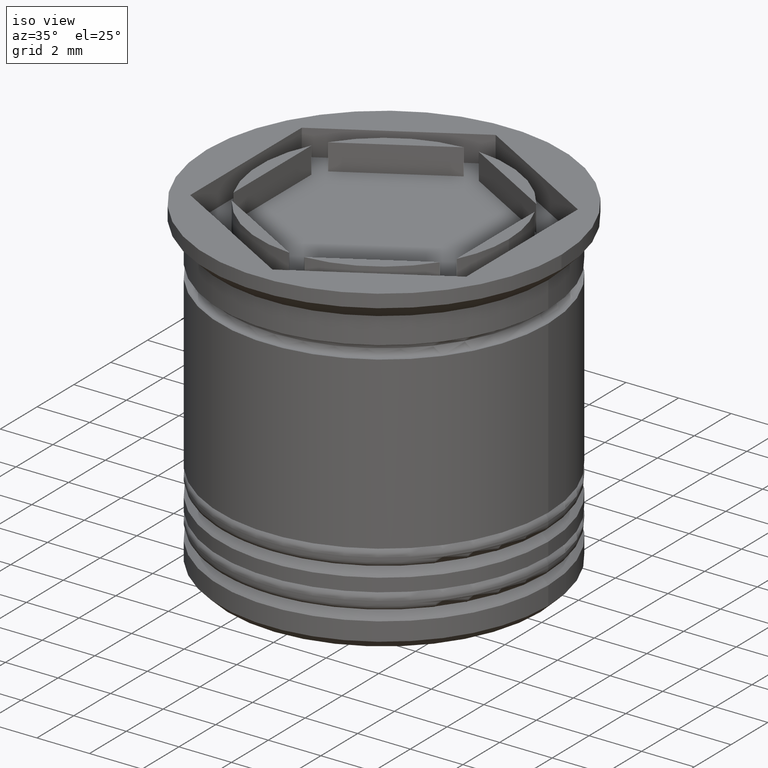
[diagram: clean part render]
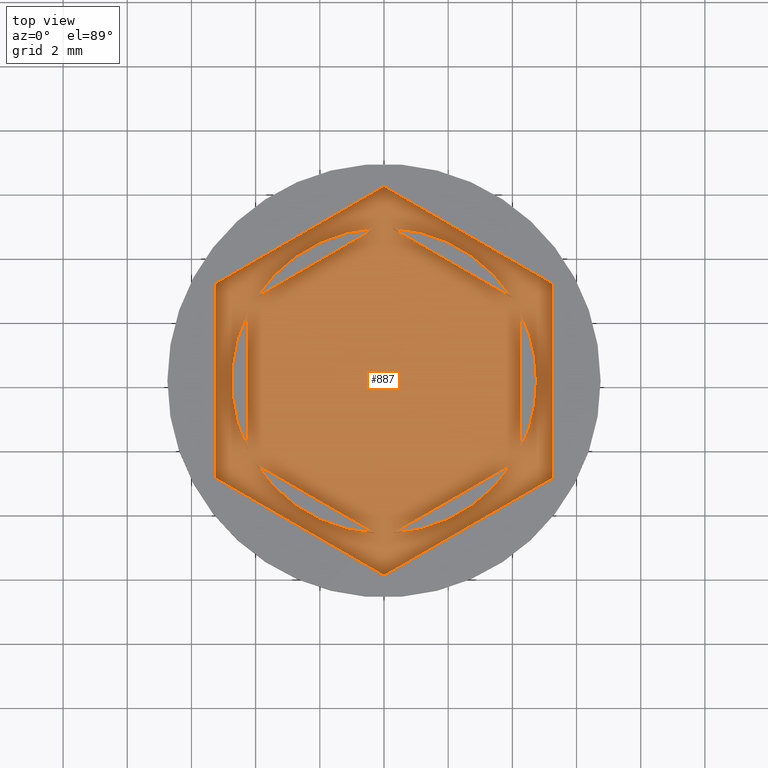
[diagram: tour spotlight — one face highlighted and labeled with its STEP entity id]
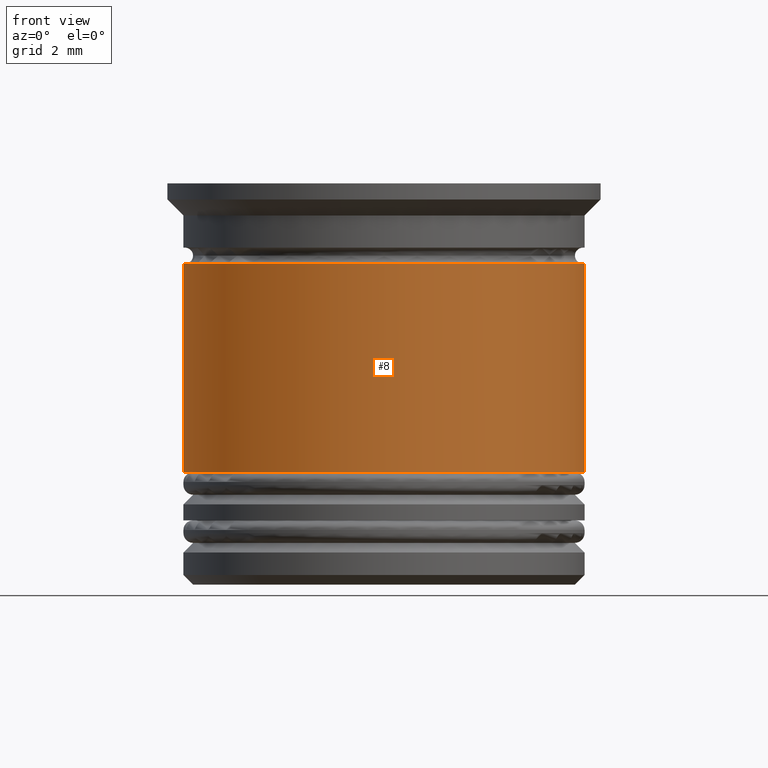
[diagram: tour spotlight — one face highlighted and labeled with its STEP entity id]
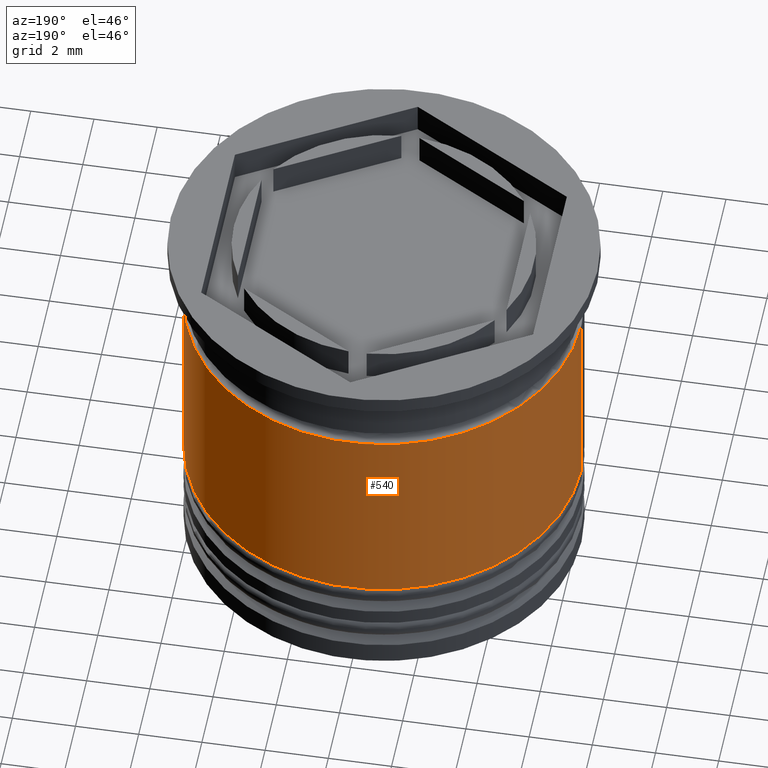
[diagram: tour spotlight — one face highlighted and labeled with its STEP entity id]
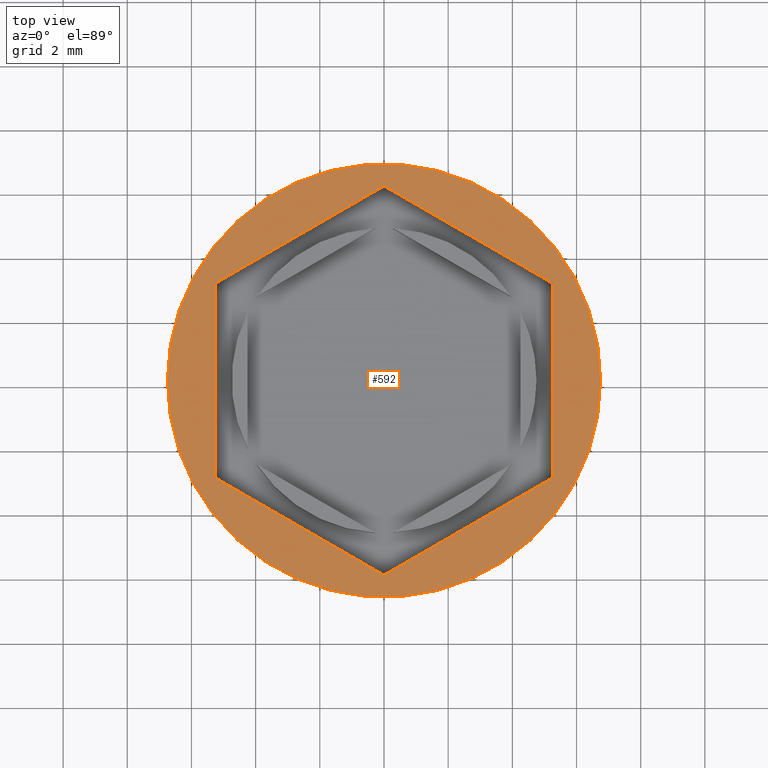
[diagram: tour spotlight — one face highlighted and labeled with its STEP entity id]
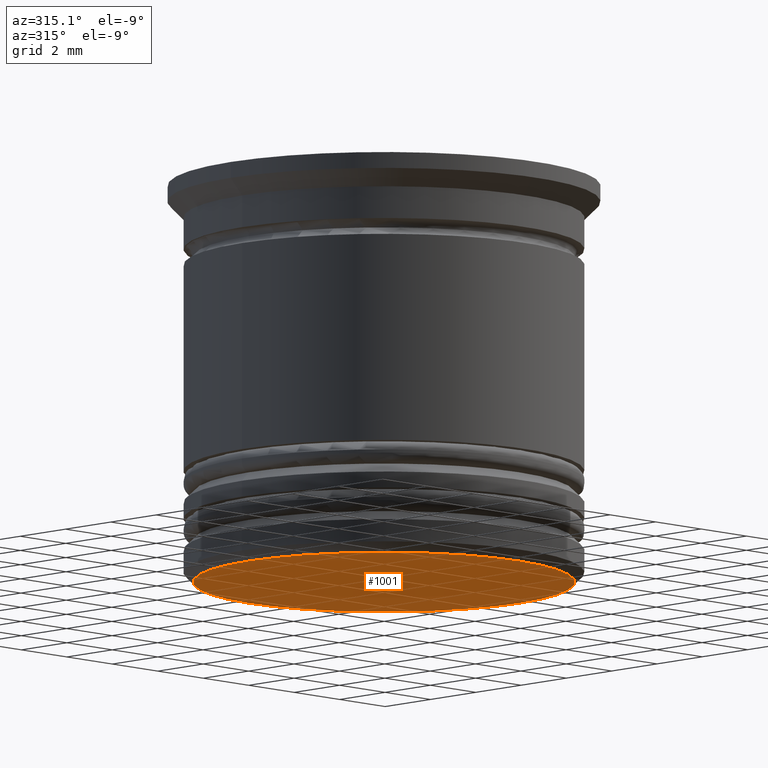
[diagram: tour spotlight — one face highlighted and labeled with its STEP entity id]
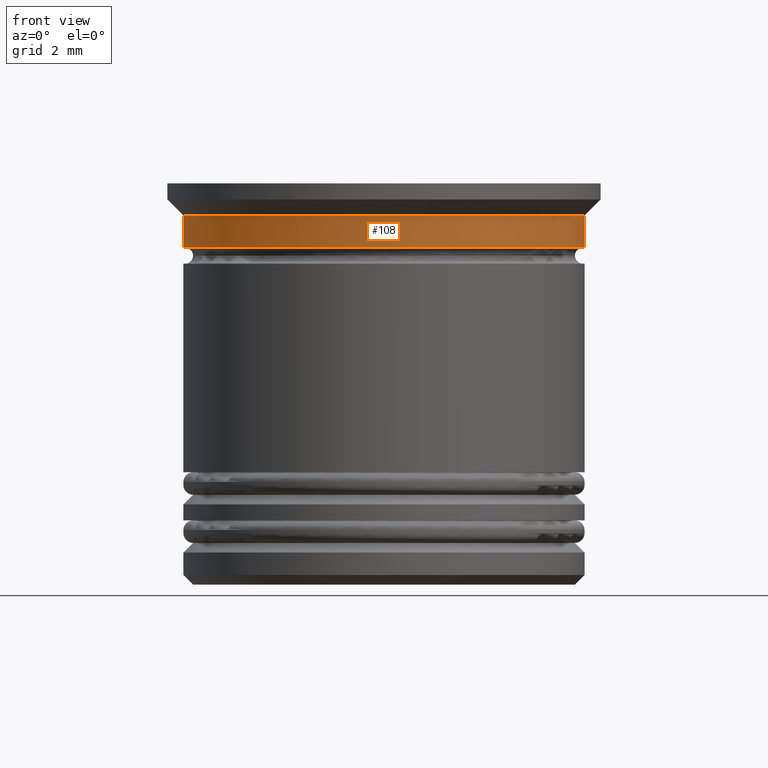
[diagram: tour spotlight — one face highlighted and labeled with its STEP entity id]
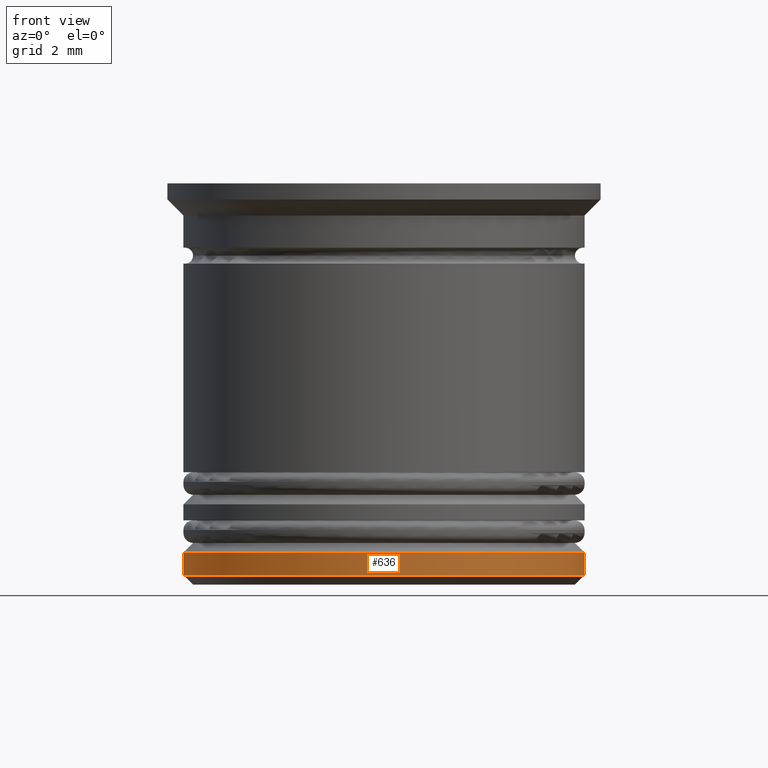
[diagram: tour spotlight — one face highlighted and labeled with its STEP entity id]
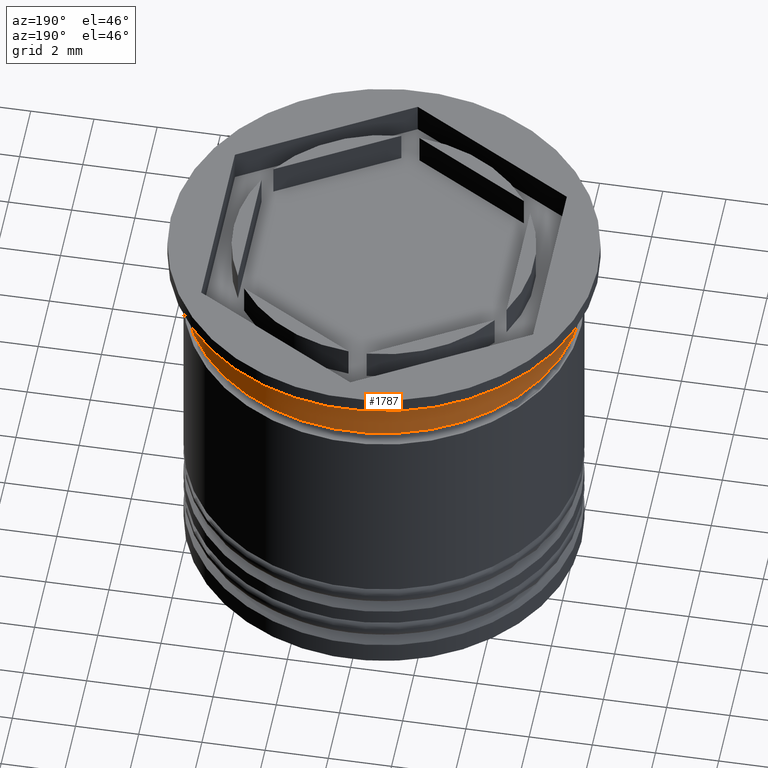
[diagram: tour spotlight — one face highlighted and labeled with its STEP entity id]
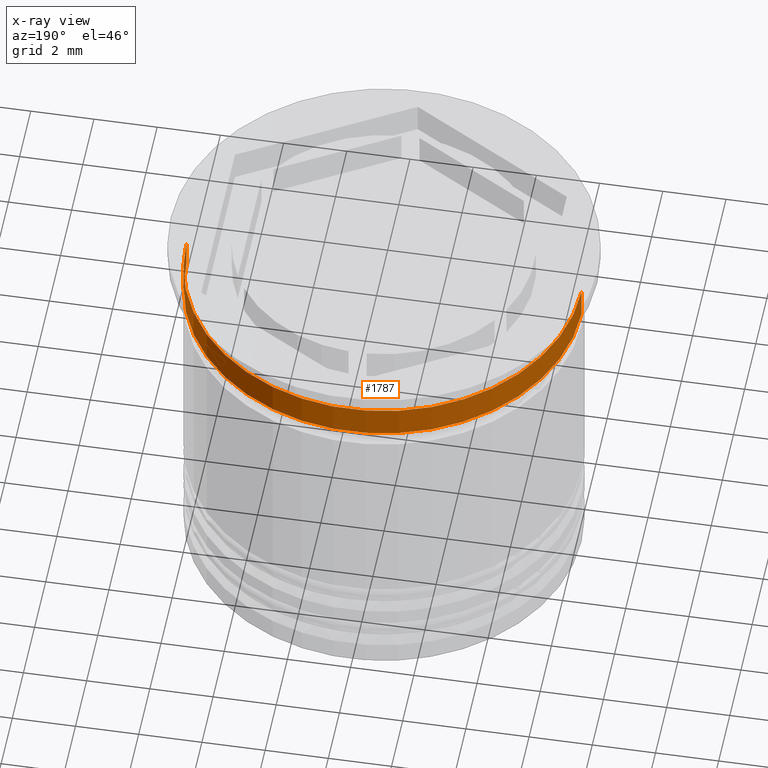
[diagram: x-ray of the same camera — body ghosted, this tour face saturated]
A machine part: a face-by-face anatomy tour. The part has 74 B-rep faces; the first image is the clean iso view, then the 8 largest visible faces are spotlighted one at a time (largest first), each with its STEP entity span.

Face 1 — top view, entity #887. In plain terms, the highlighted planar face has unit normal (-0, 0, 1).
Definition (entity closure, byte-faithful):
#13 = CARTESIAN_POINT ( 'NONE',  ( 0.000000000000000000, 0.000000000000000000, -1.000000000000000000 ) ) ;
#34 = DIRECTION ( 'NONE',  ( -0.000000000000000000, 0.000000000000000000, 1.000000000000000000 ) ) ;
#46 = ORIENTED_EDGE ( 'NONE', *, *, #673, .F. ) ;
#51 = VERTEX_POINT ( 'NONE', #1821 ) ;
#55 = ORIENTED_EDGE ( 'NONE', *, *, #1773, .F. ) ;
#58 = LINE ( 'NONE', #946, #207 ) ;
#79 = VECTOR ( 'NONE', #163, 1000.000000000000114 ) ;
#84 = AXIS2_PLACEMENT_3D ( 'NONE', #726, #1328, #1497 ) ;
#92 = ORIENTED_EDGE ( 'NONE', *, *, #815, .T. ) ;
#93 = DIRECTION ( 'NONE',  ( -0.000000000000000000, 0.000000000000000000, 1.000000000000000000 ) ) ;
#97 = DIRECTION ( 'NONE',  ( 0.000000000000000000, 1.000000000000000000, -0.000000000000000000 ) ) ;
#125 = LINE ( 'NONE', #868, #586 ) ;
#138 = VECTOR ( 'NONE', #1281, 999.9999999999998863 ) ;
#161 = DIRECTION ( 'NONE',  ( 1.000000000000000000, 0.000000000000000000, 0.000000000000000000 ) ) ;
#163 = DIRECTION ( 'NONE',  ( -0.8660254037844387076, 0.4999999999999998890, 0.000000000000000000 ) ) ;
#170 = CARTESIAN_POINT ( 'NONE',  ( 0.000000000000000000, 0.000000000000000000, -1.000000000000000000 ) ) ;
#180 = LINE ( 'NONE', #1233, #1021 ) ;
#203 = EDGE_LOOP ( 'NONE', ( #829, #721, #443 ) ) ;
#207 = VECTOR ( 'NONE', #1706, 1000.000000000000000 ) ;
#232 = ORIENTED_EDGE ( 'NONE', *, *, #1434, .F. ) ;
#252 = EDGE_CURVE ( 'NONE', #1120, #255, #1439, .T. ) ;
#255 = VERTEX_POINT ( 'NONE', #1604 ) ;
#257 = PLANE ( 'NONE',  #1247 ) ;
#272 = VERTEX_POINT ( 'NONE', #1125 ) ;
#286 = EDGE_LOOP ( 'NONE', ( #1697, #46 ) ) ;
#294 = CARTESIAN_POINT ( 'NONE',  ( 5.249999999999997335, -3.031088913245533423, -1.000000000000000000 ) ) ;
#296 = ORIENTED_EDGE ( 'NONE', *, *, #1585, .F. ) ;
#302 = CARTESIAN_POINT ( 'NONE',  ( -1.671110122936318010E-17, -4.907477288111817160, -1.000000000000000888 ) ) ;
#312 = VERTEX_POINT ( 'NONE', #1301 ) ;
#317 = DIRECTION ( 'NONE',  ( -1.767428939690775795E-16, -1.000000000000000000, 0.000000000000000000 ) ) ;
#323 = DIRECTION ( 'NONE',  ( -0.000000000000000000, 0.000000000000000000, 1.000000000000000000 ) ) ;
#328 = EDGE_LOOP ( 'NONE', ( #296, #1682 ) ) ;
#345 = CARTESIAN_POINT ( 'NONE',  ( 0.000000000000000000, 0.000000000000000000, -1.000000000000000000 ) ) ;
#371 = CARTESIAN_POINT ( 'NONE',  ( -0.2878826929126141465, -4.741268137863685617, -1.000000000000000888 ) ) ;
#401 = ORIENTED_EDGE ( 'NONE', *, *, #720, .T. ) ;
#405 = DIRECTION ( 'NONE',  ( 0.000000000000000000, -1.000000000000000000, 0.000000000000000000 ) ) ;
#409 = FACE_BOUND ( 'NONE', #203, .T. ) ;
#423 = EDGE_CURVE ( 'NONE', #666, #1172, #1099, .T. ) ;
#443 = ORIENTED_EDGE ( 'NONE', *, *, #1658, .F. ) ;
#454 = CARTESIAN_POINT ( 'NONE',  ( 3.962117307087385409, -2.619947794304039679, -1.000000000000000888 ) ) ;
#458 = EDGE_LOOP ( 'NONE', ( #1991, #1606 ) ) ;
#484 = AXIS2_PLACEMENT_3D ( 'NONE', #345, #652, #1879 ) ;
#508 = CARTESIAN_POINT ( 'NONE',  ( -5.249999999999999112, 3.031088913245535199, -1.000000000000000000 ) ) ;
#518 = ORIENTED_EDGE ( 'NONE', *, *, #823, .F. ) ;
#521 = CIRCLE ( 'NONE', #1213, 4.749999999999999112 ) ;
#530 = CARTESIAN_POINT ( 'NONE',  ( -0.2878826929126153678, 4.741268137863683840, -1.000000000000000888 ) ) ;
#552 = VECTOR ( 'NONE', #638, 1000.000000000000000 ) ;
#568 = CARTESIAN_POINT ( 'NONE',  ( -4.249999999999998224, -2.121320343559642829, -1.000000000000000888 ) ) ;
#586 = VECTOR ( 'NONE', #1032, 1000.000000000000114 ) ;
#619 = VERTEX_POINT ( 'NONE', #371 ) ;
#622 = LINE ( 'NONE', #931, #1442 ) ;
#638 = DIRECTION ( 'NONE',  ( 0.000000000000000000, 1.000000000000000000, 0.000000000000000000 ) ) ;
#652 = DIRECTION ( 'NONE',  ( -0.000000000000000000, 0.000000000000000000, 1.000000000000000000 ) ) ;
#654 = VERTEX_POINT ( 'NONE', #568 ) ;
#655 = DIRECTION ( 'NONE',  ( 1.000000000000000000, 0.000000000000000000, 0.000000000000000000 ) ) ;
#666 = VERTEX_POINT ( 'NONE', #1992 ) ;
#667 = CARTESIAN_POINT ( 'NONE',  ( -2.624999999999999556, -4.546633369868303021, -1.000000000000000000 ) ) ;
#668 = DIRECTION ( 'NONE',  ( -0.8660254037844387076, 0.4999999999999997224, 0.000000000000000000 ) ) ;
#673 = EDGE_CURVE ( 'NONE', #1889, #1815, #1984, .T. ) ;
#718 = FACE_BOUND ( 'NONE', #458, .T. ) ;
#720 = EDGE_CURVE ( 'NONE', #255, #1400, #890, .T. ) ;
#721 = ORIENTED_EDGE ( 'NONE', *, *, #423, .F. ) ;
#725 = FACE_BOUND ( 'NONE', #1239, .T. ) ;
#726 = CARTESIAN_POINT ( 'NONE',  ( 0.000000000000000000, 0.000000000000000000, -1.000000000000000000 ) ) ;
#733 = CARTESIAN_POINT ( 'NONE',  ( 0.000000000000000000, 0.000000000000000000, -1.000000000000000000 ) ) ;
#747 = CIRCLE ( 'NONE', #1412, 4.749999999999999112 ) ;
#782 = CARTESIAN_POINT ( 'NONE',  ( 4.749999999999999112, 0.000000000000000000, -1.000000000000000000 ) ) ;
#793 = VERTEX_POINT ( 'NONE', #508 ) ;
#796 = CARTESIAN_POINT ( 'NONE',  ( 0.000000000000000000, 0.000000000000000000, -1.000000000000000000 ) ) ;
#815 = EDGE_CURVE ( 'NONE', #1400, #793, #1118, .T. ) ;
#823 = EDGE_CURVE ( 'NONE', #832, #272, #1636, .T. ) ;
#829 = ORIENTED_EDGE ( 'NONE', *, *, #1888, .F. ) ;
#830 = CARTESIAN_POINT ( 'NONE',  ( -5.249999999999999112, 0.000000000000000000, -1.000000000000000000 ) ) ;
#832 = VERTEX_POINT ( 'NONE', #530 ) ;
#855 = EDGE_CURVE ( 'NONE', #1815, #1889, #521, .T. ) ;
#868 = CARTESIAN_POINT ( 'NONE',  ( 0.000000000000000000, 4.907477288111817160, -1.000000000000000888 ) ) ;
#883 = CARTESIAN_POINT ( 'NONE',  ( 2.624999999999999112, 4.546633369868303021, -1.000000000000000000 ) ) ;
#887 = ADVANCED_FACE ( 'NONE', ( #409, #1164, #1006, #1940, #725, #718, #1624 ), #257, .T. ) ;
#890 = LINE ( 'NONE', #883, #79 ) ;
#898 = CIRCLE ( 'NONE', #84, 4.749999999999999112 ) ;
#917 = CARTESIAN_POINT ( 'NONE',  ( -4.249999999999998224, 2.121320343559642829, -1.000000000000000888 ) ) ;
#931 = CARTESIAN_POINT ( 'NONE',  ( -4.249999999999998224, -2.453738644055909912, -1.000000000000000888 ) ) ;
#946 = CARTESIAN_POINT ( 'NONE',  ( 4.249999999999998224, 2.453738644055910356, -1.000000000000000888 ) ) ;
#970 = LINE ( 'NONE', #830, #1083 ) ;
#972 = ORIENTED_EDGE ( 'NONE', *, *, #252, .T. ) ;
#978 = ORIENTED_EDGE ( 'NONE', *, *, #1580, .F. ) ;
#992 = CIRCLE ( 'NONE', #1053, 4.749999999999999112 ) ;
#1006 = FACE_BOUND ( 'NONE', #328, .T. ) ;
#1007 = DIRECTION ( 'NONE',  ( -0.000000000000000000, 0.000000000000000000, 1.000000000000000000 ) ) ;
#1021 = VECTOR ( 'NONE', #1539, 1000.000000000000000 ) ;
#1023 = AXIS2_PLACEMENT_3D ( 'NONE', #796, #34, #1068 ) ;
#1032 = DIRECTION ( 'NONE',  ( 0.8660254037844385966, 0.5000000000000001110, 0.000000000000000000 ) ) ;
#1039 = CARTESIAN_POINT ( 'NONE',  ( -5.249999999999999112, -3.031088913245535199, -1.000000000000000000 ) ) ;
#1048 = CARTESIAN_POINT ( 'NONE',  ( -3.962117307087382745, -2.619947794304042787, -1.000000000000000888 ) ) ;
#1053 = AXIS2_PLACEMENT_3D ( 'NONE', #13, #323, #655 ) ;
#1065 = VERTEX_POINT ( 'NONE', #1552 ) ;
#1068 = DIRECTION ( 'NONE',  ( 1.000000000000000000, 0.000000000000000000, 0.000000000000000000 ) ) ;
#1083 = VECTOR ( 'NONE', #405, 1000.000000000000000 ) ;
#1099 = LINE ( 'NONE', #1234, #1568 ) ;
#1106 = EDGE_LOOP ( 'NONE', ( #972, #401, #92, #1253, #1414, #1261 ) ) ;
#1118 = LINE ( 'NONE', #1588, #138 ) ;
#1120 = VERTEX_POINT ( 'NONE', #294 ) ;
#1125 = CARTESIAN_POINT ( 'NONE',  ( -3.962117307087383633, 2.619947794304040567, -1.000000000000000888 ) ) ;
#1143 = CARTESIAN_POINT ( 'NONE',  ( 0.000000000000000000, 0.000000000000000000, -1.000000000000000000 ) ) ;
#1164 = FACE_BOUND ( 'NONE', #286, .T. ) ;
#1165 = CARTESIAN_POINT ( 'NONE',  ( 0.2878826929126148682, -4.741268137863684728, -1.000000000000000888 ) ) ;
#1172 = VERTEX_POINT ( 'NONE', #1570 ) ;
#1208 = DIRECTION ( 'NONE',  ( -0.8660254037844387076, -0.5000000000000001110, 0.000000000000000000 ) ) ;
#1213 = AXIS2_PLACEMENT_3D ( 'NONE', #1143, #1962, #1615 ) ;
#1218 = EDGE_CURVE ( 'NONE', #619, #1481, #622, .T. ) ;
#1233 = CARTESIAN_POINT ( 'NONE',  ( 2.624999999999999112, -4.546633369868300356, -1.000000000000000000 ) ) ;
#1234 = CARTESIAN_POINT ( 'NONE',  ( 4.249999999999997335, -2.453738644055908580, -1.000000000000000888 ) ) ;
#1239 = EDGE_LOOP ( 'NONE', ( #518, #232 ) ) ;
#1243 = CARTESIAN_POINT ( 'NONE',  ( -4.249999999999998224, 2.453738644055908136, -1.000000000000000888 ) ) ;
#1247 = AXIS2_PLACEMENT_3D ( 'NONE', #1802, #93, #1467 ) ;
#1253 = ORIENTED_EDGE ( 'NONE', *, *, #1356, .T. ) ;
#1255 = LINE ( 'NONE', #1243, #552 ) ;
#1261 = ORIENTED_EDGE ( 'NONE', *, *, #1271, .T. ) ;
#1271 = EDGE_CURVE ( 'NONE', #1065, #1120, #180, .T. ) ;
#1281 = DIRECTION ( 'NONE',  ( -0.8660254037844387076, -0.4999999999999999445, 0.000000000000000000 ) ) ;
#1301 = CARTESIAN_POINT ( 'NONE',  ( 0.2878826929126141465, 4.741268137863683840, -1.000000000000000888 ) ) ;
#1313 = CIRCLE ( 'NONE', #1023, 4.749999999999999112 ) ;
#1328 = DIRECTION ( 'NONE',  ( -0.000000000000000000, 0.000000000000000000, 1.000000000000000000 ) ) ;
#1356 = EDGE_CURVE ( 'NONE', #793, #1429, #970, .T. ) ;
#1400 = VERTEX_POINT ( 'NONE', #1760 ) ;
#1412 = AXIS2_PLACEMENT_3D ( 'NONE', #170, #1519, #161 ) ;
#1413 = EDGE_LOOP ( 'NONE', ( #55, #978 ) ) ;
#1414 = ORIENTED_EDGE ( 'NONE', *, *, #1659, .T. ) ;
#1415 = LINE ( 'NONE', #667, #1676 ) ;
#1429 = VERTEX_POINT ( 'NONE', #1039 ) ;
#1434 = EDGE_CURVE ( 'NONE', #272, #832, #125, .T. ) ;
#1439 = LINE ( 'NONE', #1749, #1632 ) ;
#1442 = VECTOR ( 'NONE', #668, 1000.000000000000114 ) ;
#1467 = DIRECTION ( 'NONE',  ( 1.000000000000000000, 0.000000000000000000, 0.000000000000000000 ) ) ;
#1468 = DIRECTION ( 'NONE',  ( 1.000000000000000000, 0.000000000000000000, 0.000000000000000000 ) ) ;
#1481 = VERTEX_POINT ( 'NONE', #1048 ) ;
#1497 = DIRECTION ( 'NONE',  ( 1.000000000000000000, 0.000000000000000000, 0.000000000000000000 ) ) ;
#1507 = AXIS2_PLACEMENT_3D ( 'NONE', #733, #1007, #1468 ) ;
#1519 = DIRECTION ( 'NONE',  ( -0.000000000000000000, 0.000000000000000000, 1.000000000000000000 ) ) ;
#1539 = DIRECTION ( 'NONE',  ( 0.8660254037844385966, 0.5000000000000001110, 0.000000000000000000 ) ) ;
#1552 = CARTESIAN_POINT ( 'NONE',  ( -4.336808689942017736E-16, -6.062177826491070398, -1.000000000000000000 ) ) ;
#1568 = VECTOR ( 'NONE', #317, 1000.000000000000000 ) ;
#1570 = CARTESIAN_POINT ( 'NONE',  ( 4.249999999999997335, -2.121320343559645494, -1.000000000000000888 ) ) ;
#1580 = EDGE_CURVE ( 'NONE', #654, #1909, #1255, .T. ) ;
#1585 = EDGE_CURVE ( 'NONE', #1481, #619, #992, .T. ) ;
#1588 = CARTESIAN_POINT ( 'NONE',  ( -2.624999999999999112, 4.546633369868302132, -1.000000000000000000 ) ) ;
#1604 = CARTESIAN_POINT ( 'NONE',  ( 5.249999999999997335, 3.031088913245536975, -1.000000000000000000 ) ) ;
#1606 = ORIENTED_EDGE ( 'NONE', *, *, #1644, .F. ) ;
#1615 = DIRECTION ( 'NONE',  ( 1.000000000000000000, 0.000000000000000000, 0.000000000000000000 ) ) ;
#1624 = FACE_OUTER_BOUND ( 'NONE', #1106, .T. ) ;
#1632 = VECTOR ( 'NONE', #97, 1000.000000000000000 ) ;
#1636 = CIRCLE ( 'NONE', #484, 4.749999999999999112 ) ;
#1644 = EDGE_CURVE ( 'NONE', #312, #51, #58, .T. ) ;
#1658 = EDGE_CURVE ( 'NONE', #1916, #666, #1313, .T. ) ;
#1659 = EDGE_CURVE ( 'NONE', #1429, #1065, #1415, .T. ) ;
#1676 = VECTOR ( 'NONE', #1694, 999.9999999999998863 ) ;
#1682 = ORIENTED_EDGE ( 'NONE', *, *, #1218, .F. ) ;
#1694 = DIRECTION ( 'NONE',  ( 0.8660254037844387076, -0.4999999999999999445, 0.000000000000000000 ) ) ;
#1697 = ORIENTED_EDGE ( 'NONE', *, *, #855, .F. ) ;
#1706 = DIRECTION ( 'NONE',  ( 0.8660254037844388186, -0.4999999999999996669, 0.000000000000000000 ) ) ;
#1749 = CARTESIAN_POINT ( 'NONE',  ( 5.249999999999997335, 0.000000000000000000, -1.000000000000000000 ) ) ;
#1753 = CIRCLE ( 'NONE', #1507, 4.749999999999999112 ) ;
#1760 = CARTESIAN_POINT ( 'NONE',  ( 0.000000000000000000, 6.062177826491069510, -1.000000000000000000 ) ) ;
#1773 = EDGE_CURVE ( 'NONE', #1909, #654, #1753, .T. ) ;
#1802 = CARTESIAN_POINT ( 'NONE',  ( 0.000000000000000000, 0.000000000000000000, -1.000000000000000000 ) ) ;
#1815 = VERTEX_POINT ( 'NONE', #1165 ) ;
#1821 = CARTESIAN_POINT ( 'NONE',  ( 3.962117307087382745, 2.619947794304043232, -1.000000000000000888 ) ) ;
#1857 = EDGE_CURVE ( 'NONE', #51, #312, #898, .T. ) ;
#1879 = DIRECTION ( 'NONE',  ( 1.000000000000000000, 0.000000000000000000, 0.000000000000000000 ) ) ;
#1888 = EDGE_CURVE ( 'NONE', #1172, #1916, #747, .T. ) ;
#1889 = VERTEX_POINT ( 'NONE', #454 ) ;
#1909 = VERTEX_POINT ( 'NONE', #917 ) ;
#1916 = VERTEX_POINT ( 'NONE', #782 ) ;
#1937 = VECTOR ( 'NONE', #1208, 999.9999999999998863 ) ;
#1940 = FACE_BOUND ( 'NONE', #1413, .T. ) ;
#1962 = DIRECTION ( 'NONE',  ( -0.000000000000000000, 0.000000000000000000, 1.000000000000000000 ) ) ;
#1984 = LINE ( 'NONE', #302, #1937 ) ;
#1991 = ORIENTED_EDGE ( 'NONE', *, *, #1857, .F. ) ;
#1992 = CARTESIAN_POINT ( 'NONE',  ( 4.249999999999998224, 2.121320343559643273, -1.000000000000000888 ) ) ;

Face 2 — front view, entity #8. In plain terms, the highlighted cylindrical surface (partial cylindrical patch) has radius 6.25 mm, axis along (-0, -0, 1).
Definition (entity closure, byte-faithful):
#8 = ADVANCED_FACE ( 'NONE', ( #1075 ), #226, .T. ) ;
#29 = VERTEX_POINT ( 'NONE', #385 ) ;
#83 = ORIENTED_EDGE ( 'NONE', *, *, #594, .T. ) ;
#115 = DIRECTION ( 'NONE',  ( 1.000000000000000000, 0.000000000000000000, 0.000000000000000000 ) ) ;
#120 = CARTESIAN_POINT ( 'NONE',  ( 0.000000000000000000, 0.000000000000000000, -2.499999999999998668 ) ) ;
#226 = CYLINDRICAL_SURFACE ( 'NONE', #1016, 6.249999999999999112 ) ;
#265 = CIRCLE ( 'NONE', #1279, 6.250000000000000000 ) ;
#331 = CIRCLE ( 'NONE', #333, 6.249999999999998224 ) ;
#333 = AXIS2_PLACEMENT_3D ( 'NONE', #120, #1327, #834 ) ;
#356 = CARTESIAN_POINT ( 'NONE',  ( -6.249999999999999112, 7.654042494670956620E-16, 0.000000000000000000 ) ) ;
#385 = CARTESIAN_POINT ( 'NONE',  ( 6.249999999999998224, 0.000000000000000000, -2.499999999999998668 ) ) ;
#594 = EDGE_CURVE ( 'NONE', #1269, #29, #854, .T. ) ;
#630 = EDGE_CURVE ( 'NONE', #1005, #1269, #265, .T. ) ;
#653 = VECTOR ( 'NONE', #1391, 1000.000000000000000 ) ;
#712 = ORIENTED_EDGE ( 'NONE', *, *, #925, .F. ) ;
#731 = ORIENTED_EDGE ( 'NONE', *, *, #1621, .F. ) ;
#763 = LINE ( 'NONE', #356, #653 ) ;
#822 = CARTESIAN_POINT ( 'NONE',  ( 0.000000000000000000, 0.000000000000000000, -9.000000000000001776 ) ) ;
#834 = DIRECTION ( 'NONE',  ( 1.000000000000000000, 0.000000000000000000, 0.000000000000000000 ) ) ;
#835 = DIRECTION ( 'NONE',  ( 1.000000000000000000, 0.000000000000000000, 0.000000000000000000 ) ) ;
#854 = LINE ( 'NONE', #1892, #1244 ) ;
#925 = EDGE_CURVE ( 'NONE', #1795, #29, #331, .T. ) ;
#1005 = VERTEX_POINT ( 'NONE', #1666 ) ;
#1016 = AXIS2_PLACEMENT_3D ( 'NONE', #1863, #1791, #835 ) ;
#1075 = FACE_OUTER_BOUND ( 'NONE', #1241, .T. ) ;
#1103 = ORIENTED_EDGE ( 'NONE', *, *, #630, .T. ) ;
#1241 = EDGE_LOOP ( 'NONE', ( #731, #1103, #83, #712 ) ) ;
#1244 = VECTOR ( 'NONE', #1649, 1000.000000000000000 ) ;
#1269 = VERTEX_POINT ( 'NONE', #1848 ) ;
#1279 = AXIS2_PLACEMENT_3D ( 'NONE', #822, #1461, #115 ) ;
#1327 = DIRECTION ( 'NONE',  ( -0.000000000000000000, -0.000000000000000000, 1.000000000000000000 ) ) ;
#1391 = DIRECTION ( 'NONE',  ( -0.000000000000000000, -0.000000000000000000, 1.000000000000000000 ) ) ;
#1461 = DIRECTION ( 'NONE',  ( -0.000000000000000000, -0.000000000000000000, 1.000000000000000000 ) ) ;
#1621 = EDGE_CURVE ( 'NONE', #1005, #1795, #763, .T. ) ;
#1649 = DIRECTION ( 'NONE',  ( -0.000000000000000000, -0.000000000000000000, 1.000000000000000000 ) ) ;
#1666 = CARTESIAN_POINT ( 'NONE',  ( -6.250000000000000888, 7.654042494670958593E-16, -9.000000000000001776 ) ) ;
#1791 = DIRECTION ( 'NONE',  ( -0.000000000000000000, -0.000000000000000000, 1.000000000000000000 ) ) ;
#1795 = VERTEX_POINT ( 'NONE', #1974 ) ;
#1848 = CARTESIAN_POINT ( 'NONE',  ( 6.250000000000000000, 0.000000000000000000, -9.000000000000001776 ) ) ;
#1863 = CARTESIAN_POINT ( 'NONE',  ( 0.000000000000000000, 0.000000000000000000, 0.000000000000000000 ) ) ;
#1892 = CARTESIAN_POINT ( 'NONE',  ( 6.249999999999999112, 0.000000000000000000, 0.000000000000000000 ) ) ;
#1974 = CARTESIAN_POINT ( 'NONE',  ( -6.249999999999998224, 7.654042494670956620E-16, -2.499999999999998668 ) ) ;

Face 3 — auxiliary view, entity #540. In plain terms, the highlighted cylindrical surface (partial cylindrical patch) has radius 6.25 mm, axis along (-0, -0, 1).
Definition (entity closure, byte-faithful):
#29 = VERTEX_POINT ( 'NONE', #385 ) ;
#45 = CIRCLE ( 'NONE', #1833, 6.249999999999998224 ) ;
#127 = ORIENTED_EDGE ( 'NONE', *, *, #594, .F. ) ;
#227 = DIRECTION ( 'NONE',  ( -0.000000000000000000, -0.000000000000000000, 1.000000000000000000 ) ) ;
#273 = DIRECTION ( 'NONE',  ( -0.000000000000000000, -0.000000000000000000, 1.000000000000000000 ) ) ;
#356 = CARTESIAN_POINT ( 'NONE',  ( -6.249999999999999112, 7.654042494670956620E-16, 0.000000000000000000 ) ) ;
#385 = CARTESIAN_POINT ( 'NONE',  ( 6.249999999999998224, 0.000000000000000000, -2.499999999999998668 ) ) ;
#498 = CARTESIAN_POINT ( 'NONE',  ( 0.000000000000000000, 0.000000000000000000, -2.499999999999998668 ) ) ;
#513 = CYLINDRICAL_SURFACE ( 'NONE', #1831, 6.249999999999999112 ) ;
#540 = ADVANCED_FACE ( 'NONE', ( #1417 ), #513, .T. ) ;
#591 = EDGE_CURVE ( 'NONE', #1269, #1005, #1211, .T. ) ;
#594 = EDGE_CURVE ( 'NONE', #1269, #29, #854, .T. ) ;
#653 = VECTOR ( 'NONE', #1391, 1000.000000000000000 ) ;
#659 = ORIENTED_EDGE ( 'NONE', *, *, #591, .T. ) ;
#669 = DIRECTION ( 'NONE',  ( 1.000000000000000000, 0.000000000000000000, 0.000000000000000000 ) ) ;
#738 = AXIS2_PLACEMENT_3D ( 'NONE', #965, #273, #669 ) ;
#763 = LINE ( 'NONE', #356, #653 ) ;
#827 = EDGE_CURVE ( 'NONE', #29, #1795, #45, .T. ) ;
#854 = LINE ( 'NONE', #1892, #1244 ) ;
#873 = EDGE_LOOP ( 'NONE', ( #659, #1000, #1411, #127 ) ) ;
#965 = CARTESIAN_POINT ( 'NONE',  ( 0.000000000000000000, 0.000000000000000000, -9.000000000000001776 ) ) ;
#1000 = ORIENTED_EDGE ( 'NONE', *, *, #1621, .T. ) ;
#1005 = VERTEX_POINT ( 'NONE', #1666 ) ;
#1211 = CIRCLE ( 'NONE', #738, 6.250000000000000000 ) ;
#1244 = VECTOR ( 'NONE', #1649, 1000.000000000000000 ) ;
#1269 = VERTEX_POINT ( 'NONE', #1848 ) ;
#1321 = DIRECTION ( 'NONE',  ( -0.000000000000000000, -0.000000000000000000, 1.000000000000000000 ) ) ;
#1330 = CARTESIAN_POINT ( 'NONE',  ( 0.000000000000000000, 0.000000000000000000, 0.000000000000000000 ) ) ;
#1391 = DIRECTION ( 'NONE',  ( -0.000000000000000000, -0.000000000000000000, 1.000000000000000000 ) ) ;
#1411 = ORIENTED_EDGE ( 'NONE', *, *, #827, .F. ) ;
#1417 = FACE_OUTER_BOUND ( 'NONE', #873, .T. ) ;
#1621 = EDGE_CURVE ( 'NONE', #1005, #1795, #763, .T. ) ;
#1649 = DIRECTION ( 'NONE',  ( -0.000000000000000000, -0.000000000000000000, 1.000000000000000000 ) ) ;
#1666 = CARTESIAN_POINT ( 'NONE',  ( -6.250000000000000888, 7.654042494670958593E-16, -9.000000000000001776 ) ) ;
#1794 = DIRECTION ( 'NONE',  ( 1.000000000000000000, 0.000000000000000000, 0.000000000000000000 ) ) ;
#1795 = VERTEX_POINT ( 'NONE', #1974 ) ;
#1831 = AXIS2_PLACEMENT_3D ( 'NONE', #1330, #1321, #1794 ) ;
#1833 = AXIS2_PLACEMENT_3D ( 'NONE', #498, #227, #1912 ) ;
#1848 = CARTESIAN_POINT ( 'NONE',  ( 6.250000000000000000, 0.000000000000000000, -9.000000000000001776 ) ) ;
#1892 = CARTESIAN_POINT ( 'NONE',  ( 6.249999999999999112, 0.000000000000000000, 0.000000000000000000 ) ) ;
#1912 = DIRECTION ( 'NONE',  ( 1.000000000000000000, 0.000000000000000000, 0.000000000000000000 ) ) ;
#1974 = CARTESIAN_POINT ( 'NONE',  ( -6.249999999999998224, 7.654042494670956620E-16, -2.499999999999998668 ) ) ;

Face 4 — top view, entity #592. In plain terms, the highlighted planar face has unit normal (0, -0, 1).
Definition (entity closure, byte-faithful):
#36 = EDGE_CURVE ( 'NONE', #234, #1899, #1941, .T. ) ;
#50 = LINE ( 'NONE', #1859, #520 ) ;
#73 = DIRECTION ( 'NONE',  ( 1.000000000000000000, 0.000000000000000000, 0.000000000000000000 ) ) ;
#74 = VECTOR ( 'NONE', #660, 999.9999999999998863 ) ;
#81 = DIRECTION ( 'NONE',  ( 0.8660254037844385966, 0.5000000000000001110, 0.000000000000000000 ) ) ;
#124 = FACE_OUTER_BOUND ( 'NONE', #451, .T. ) ;
#150 = VERTEX_POINT ( 'NONE', #514 ) ;
#183 = EDGE_CURVE ( 'NONE', #1752, #1712, #420, .T. ) ;
#195 = EDGE_CURVE ( 'NONE', #1718, #1235, #1861, .T. ) ;
#234 = VERTEX_POINT ( 'NONE', #952 ) ;
#240 = LINE ( 'NONE', #850, #767 ) ;
#243 = EDGE_CURVE ( 'NONE', #944, #150, #859, .T. ) ;
#244 = ORIENTED_EDGE ( 'NONE', *, *, #183, .T. ) ;
#256 = EDGE_CURVE ( 'NONE', #1899, #944, #240, .T. ) ;
#347 = CARTESIAN_POINT ( 'NONE',  ( -6.750000000000000000, 8.266365894244634333E-16, 0.000000000000000000 ) ) ;
#380 = PLANE ( 'NONE',  #1864 ) ;
#392 = CARTESIAN_POINT ( 'NONE',  ( -2.624999999999999556, -4.546633369868303021, 0.000000000000000000 ) ) ;
#393 = EDGE_CURVE ( 'NONE', #1235, #234, #50, .T. ) ;
#411 = ORIENTED_EDGE ( 'NONE', *, *, #1609, .F. ) ;
#420 = CIRCLE ( 'NONE', #1799, 6.750000000000000000 ) ;
#432 = CARTESIAN_POINT ( 'NONE',  ( 0.000000000000000000, 0.000000000000000000, 0.000000000000000000 ) ) ;
#451 = EDGE_LOOP ( 'NONE', ( #244, #1854 ) ) ;
#494 = CARTESIAN_POINT ( 'NONE',  ( -2.624999999999999112, 4.546633369868302132, 0.000000000000000000 ) ) ;
#496 = ORIENTED_EDGE ( 'NONE', *, *, #393, .F. ) ;
#514 = CARTESIAN_POINT ( 'NONE',  ( 5.249999999999997335, 3.031088913245537420, 0.000000000000000000 ) ) ;
#520 = VECTOR ( 'NONE', #766, 1000.000000000000000 ) ;
#592 = ADVANCED_FACE ( 'NONE', ( #1482, #124 ), #380, .T. ) ;
#601 = CARTESIAN_POINT ( 'NONE',  ( 5.249999999999997335, -3.031088913245533423, 0.000000000000000000 ) ) ;
#644 = VECTOR ( 'NONE', #967, 1000.000000000000000 ) ;
#660 = DIRECTION ( 'NONE',  ( -0.8660254037844387076, -0.4999999999999999445, 0.000000000000000000 ) ) ;
#691 = CARTESIAN_POINT ( 'NONE',  ( 5.249999999999997335, 0.000000000000000000, 0.000000000000000000 ) ) ;
#699 = ORIENTED_EDGE ( 'NONE', *, *, #243, .F. ) ;
#729 = DIRECTION ( 'NONE',  ( 0.000000000000000000, -0.000000000000000000, 1.000000000000000000 ) ) ;
#734 = ORIENTED_EDGE ( 'NONE', *, *, #256, .F. ) ;
#766 = DIRECTION ( 'NONE',  ( 0.000000000000000000, -1.000000000000000000, 0.000000000000000000 ) ) ;
#767 = VECTOR ( 'NONE', #81, 1000.000000000000000 ) ;
#784 = CARTESIAN_POINT ( 'NONE',  ( 0.000000000000000000, 0.000000000000000000, 0.000000000000000000 ) ) ;
#797 = EDGE_CURVE ( 'NONE', #1712, #1752, #894, .T. ) ;
#824 = ORIENTED_EDGE ( 'NONE', *, *, #195, .F. ) ;
#850 = CARTESIAN_POINT ( 'NONE',  ( 2.624999999999999112, -4.546633369868300356, 0.000000000000000000 ) ) ;
#859 = LINE ( 'NONE', #691, #644 ) ;
#894 = CIRCLE ( 'NONE', #1079, 6.750000000000000000 ) ;
#896 = ORIENTED_EDGE ( 'NONE', *, *, #36, .F. ) ;
#911 = LINE ( 'NONE', #1383, #1976 ) ;
#924 = CARTESIAN_POINT ( 'NONE',  ( 0.000000000000000000, 0.000000000000000000, 0.000000000000000000 ) ) ;
#944 = VERTEX_POINT ( 'NONE', #601 ) ;
#952 = CARTESIAN_POINT ( 'NONE',  ( -5.249999999999999112, -3.031088913245535199, 0.000000000000000000 ) ) ;
#958 = DIRECTION ( 'NONE',  ( -0.000000000000000000, -0.000000000000000000, 1.000000000000000000 ) ) ;
#967 = DIRECTION ( 'NONE',  ( 0.000000000000000000, 1.000000000000000000, -0.000000000000000000 ) ) ;
#988 = DIRECTION ( 'NONE',  ( 0.8660254037844387076, -0.4999999999999999445, 0.000000000000000000 ) ) ;
#1035 = CARTESIAN_POINT ( 'NONE',  ( -4.336808689942017736E-16, -6.062177826491070398, 0.000000000000000000 ) ) ;
#1079 = AXIS2_PLACEMENT_3D ( 'NONE', #784, #958, #73 ) ;
#1235 = VERTEX_POINT ( 'NONE', #1550 ) ;
#1265 = DIRECTION ( 'NONE',  ( 1.000000000000000000, 0.000000000000000000, 0.000000000000000000 ) ) ;
#1383 = CARTESIAN_POINT ( 'NONE',  ( 2.624999999999999112, 4.546633369868303021, 0.000000000000000000 ) ) ;
#1459 = CARTESIAN_POINT ( 'NONE',  ( 6.750000000000000000, 0.000000000000000000, 0.000000000000000000 ) ) ;
#1482 = FACE_BOUND ( 'NONE', #1645, .T. ) ;
#1529 = DIRECTION ( 'NONE',  ( -0.000000000000000000, -0.000000000000000000, 1.000000000000000000 ) ) ;
#1550 = CARTESIAN_POINT ( 'NONE',  ( -5.249999999999999112, 3.031088913245535199, 0.000000000000000000 ) ) ;
#1609 = EDGE_CURVE ( 'NONE', #150, #1718, #911, .T. ) ;
#1645 = EDGE_LOOP ( 'NONE', ( #699, #734, #896, #496, #824, #411 ) ) ;
#1712 = VERTEX_POINT ( 'NONE', #347 ) ;
#1718 = VERTEX_POINT ( 'NONE', #1775 ) ;
#1731 = DIRECTION ( 'NONE',  ( -0.8660254037844387076, 0.4999999999999998890, 0.000000000000000000 ) ) ;
#1752 = VERTEX_POINT ( 'NONE', #1459 ) ;
#1775 = CARTESIAN_POINT ( 'NONE',  ( 0.000000000000000000, 6.062177826491069510, 0.000000000000000000 ) ) ;
#1799 = AXIS2_PLACEMENT_3D ( 'NONE', #924, #1529, #1874 ) ;
#1854 = ORIENTED_EDGE ( 'NONE', *, *, #797, .T. ) ;
#1859 = CARTESIAN_POINT ( 'NONE',  ( -5.249999999999999112, 0.000000000000000000, 0.000000000000000000 ) ) ;
#1861 = LINE ( 'NONE', #494, #74 ) ;
#1864 = AXIS2_PLACEMENT_3D ( 'NONE', #432, #729, #1265 ) ;
#1874 = DIRECTION ( 'NONE',  ( 1.000000000000000000, 0.000000000000000000, 0.000000000000000000 ) ) ;
#1899 = VERTEX_POINT ( 'NONE', #1035 ) ;
#1934 = VECTOR ( 'NONE', #988, 999.9999999999998863 ) ;
#1941 = LINE ( 'NONE', #392, #1934 ) ;
#1976 = VECTOR ( 'NONE', #1731, 1000.000000000000114 ) ;

Face 5 — auxiliary view, entity #1001. In plain terms, the highlighted planar face has unit normal (0, 0, -1).
Definition (entity closure, byte-faithful):
#19 = FACE_OUTER_BOUND ( 'NONE', #1278, .T. ) ;
#54 = ORIENTED_EDGE ( 'NONE', *, *, #1811, .T. ) ;
#156 = EDGE_CURVE ( 'NONE', #637, #1610, #1798, .T. ) ;
#159 = DIRECTION ( 'NONE',  ( -1.000000000000000000, 0.000000000000000000, -0.000000000000000000 ) ) ;
#211 = CIRCLE ( 'NONE', #656, 5.950000000000001954 ) ;
#279 = CARTESIAN_POINT ( 'NONE',  ( 0.000000000000000000, 6.250000000000000888, -12.50000000000000000 ) ) ;
#319 = DIRECTION ( 'NONE',  ( 0.000000000000000000, 0.000000000000000000, -1.000000000000000000 ) ) ;
#320 = CARTESIAN_POINT ( 'NONE',  ( 0.000000000000000000, 0.000000000000000000, -12.50000000000000000 ) ) ;
#330 = DIRECTION ( 'NONE',  ( 0.000000000000000000, 0.000000000000000000, -1.000000000000000000 ) ) ;
#566 = DIRECTION ( 'NONE',  ( 0.000000000000000000, 0.000000000000000000, -1.000000000000000000 ) ) ;
#637 = VERTEX_POINT ( 'NONE', #1166 ) ;
#656 = AXIS2_PLACEMENT_3D ( 'NONE', #1953, #566, #1963 ) ;
#895 = AXIS2_PLACEMENT_3D ( 'NONE', #279, #319, #159 ) ;
#1001 = ADVANCED_FACE ( 'NONE', ( #19 ), #1486, .T. ) ;
#1166 = CARTESIAN_POINT ( 'NONE',  ( -5.950000000000001954, 7.470345474798856265E-16, -12.50000000000000000 ) ) ;
#1278 = EDGE_LOOP ( 'NONE', ( #54, #1453 ) ) ;
#1396 = DIRECTION ( 'NONE',  ( -1.000000000000000000, 0.000000000000000000, 0.000000000000000000 ) ) ;
#1453 = ORIENTED_EDGE ( 'NONE', *, *, #156, .T. ) ;
#1486 = PLANE ( 'NONE',  #895 ) ;
#1533 = AXIS2_PLACEMENT_3D ( 'NONE', #320, #330, #1396 ) ;
#1610 = VERTEX_POINT ( 'NONE', #1685 ) ;
#1685 = CARTESIAN_POINT ( 'NONE',  ( 5.950000000000001954, 0.000000000000000000, -12.50000000000000000 ) ) ;
#1798 = CIRCLE ( 'NONE', #1533, 5.950000000000001954 ) ;
#1811 = EDGE_CURVE ( 'NONE', #1610, #637, #211, .T. ) ;
#1953 = CARTESIAN_POINT ( 'NONE',  ( 0.000000000000000000, 0.000000000000000000, -12.50000000000000000 ) ) ;
#1963 = DIRECTION ( 'NONE',  ( -1.000000000000000000, 0.000000000000000000, 0.000000000000000000 ) ) ;

Face 6 — front view, entity #108. In plain terms, the highlighted cylindrical surface (partial cylindrical patch) has radius 6.25 mm, axis along (-0, -0, 1).
Definition (entity closure, byte-faithful):
#43 = VECTOR ( 'NONE', #400, 1000.000000000000000 ) ;
#90 = DIRECTION ( 'NONE',  ( -0.000000000000000000, -0.000000000000000000, 1.000000000000000000 ) ) ;
#95 = CARTESIAN_POINT ( 'NONE',  ( 0.000000000000000000, 0.000000000000000000, -2.000000000000000888 ) ) ;
#106 = CIRCLE ( 'NONE', #806, 6.249999999999998224 ) ;
#108 = ADVANCED_FACE ( 'NONE', ( #906 ), #483, .T. ) ;
#175 = CARTESIAN_POINT ( 'NONE',  ( 6.249999999999998224, 0.000000000000000000, -2.000000000000000888 ) ) ;
#184 = CARTESIAN_POINT ( 'NONE',  ( 0.000000000000000000, 0.000000000000000000, 0.000000000000000000 ) ) ;
#213 = DIRECTION ( 'NONE',  ( 1.000000000000000000, 0.000000000000000000, 0.000000000000000000 ) ) ;
#223 = CARTESIAN_POINT ( 'NONE',  ( -6.249999999999998224, 7.654042494670955634E-16, 0.000000000000000000 ) ) ;
#305 = EDGE_CURVE ( 'NONE', #1692, #1923, #1287, .T. ) ;
#346 = ORIENTED_EDGE ( 'NONE', *, *, #1515, .T. ) ;
#400 = DIRECTION ( 'NONE',  ( -0.000000000000000000, -0.000000000000000000, 1.000000000000000000 ) ) ;
#439 = CARTESIAN_POINT ( 'NONE',  ( -6.249999999999998224, 7.654042494670955634E-16, -0.9999999999999995559 ) ) ;
#483 = CYLINDRICAL_SURFACE ( 'NONE', #1173, 6.249999999999998224 ) ;
#595 = CARTESIAN_POINT ( 'NONE',  ( 6.249999999999998224, 0.000000000000000000, -0.9999999999999995559 ) ) ;
#628 = CARTESIAN_POINT ( 'NONE',  ( 0.000000000000000000, 0.000000000000000000, -0.9999999999999995559 ) ) ;
#681 = VERTEX_POINT ( 'NONE', #175 ) ;
#765 = EDGE_CURVE ( 'NONE', #1923, #1890, #106, .T. ) ;
#806 = AXIS2_PLACEMENT_3D ( 'NONE', #628, #1230, #1855 ) ;
#816 = DIRECTION ( 'NONE',  ( -0.000000000000000000, -0.000000000000000000, 1.000000000000000000 ) ) ;
#906 = FACE_OUTER_BOUND ( 'NONE', #1800, .T. ) ;
#1141 = ORIENTED_EDGE ( 'NONE', *, *, #765, .F. ) ;
#1150 = VECTOR ( 'NONE', #1980, 1000.000000000000000 ) ;
#1173 = AXIS2_PLACEMENT_3D ( 'NONE', #184, #816, #213 ) ;
#1219 = CIRCLE ( 'NONE', #1446, 6.249999999999998224 ) ;
#1230 = DIRECTION ( 'NONE',  ( -0.000000000000000000, -0.000000000000000000, 1.000000000000000000 ) ) ;
#1287 = LINE ( 'NONE', #223, #43 ) ;
#1342 = LINE ( 'NONE', #1837, #1150 ) ;
#1404 = EDGE_CURVE ( 'NONE', #1692, #681, #1219, .T. ) ;
#1446 = AXIS2_PLACEMENT_3D ( 'NONE', #95, #90, #1768 ) ;
#1515 = EDGE_CURVE ( 'NONE', #681, #1890, #1342, .T. ) ;
#1578 = ORIENTED_EDGE ( 'NONE', *, *, #1404, .T. ) ;
#1692 = VERTEX_POINT ( 'NONE', #1856 ) ;
#1768 = DIRECTION ( 'NONE',  ( 1.000000000000000000, 0.000000000000000000, 0.000000000000000000 ) ) ;
#1800 = EDGE_LOOP ( 'NONE', ( #1877, #1578, #346, #1141 ) ) ;
#1837 = CARTESIAN_POINT ( 'NONE',  ( 6.249999999999998224, 0.000000000000000000, 0.000000000000000000 ) ) ;
#1855 = DIRECTION ( 'NONE',  ( 1.000000000000000000, 0.000000000000000000, 0.000000000000000000 ) ) ;
#1856 = CARTESIAN_POINT ( 'NONE',  ( -6.249999999999998224, 7.654042494670955634E-16, -2.000000000000000888 ) ) ;
#1877 = ORIENTED_EDGE ( 'NONE', *, *, #305, .F. ) ;
#1890 = VERTEX_POINT ( 'NONE', #595 ) ;
#1923 = VERTEX_POINT ( 'NONE', #439 ) ;
#1980 = DIRECTION ( 'NONE',  ( -0.000000000000000000, -0.000000000000000000, 1.000000000000000000 ) ) ;

Face 7 — front view, entity #636. In plain terms, the highlighted cylindrical surface (partial cylindrical patch) has radius 6.25 mm, axis along (-0, -0, 1).
Definition (entity closure, byte-faithful):
#199 = ORIENTED_EDGE ( 'NONE', *, *, #1556, .T. ) ;
#231 = DIRECTION ( 'NONE',  ( 0.000000000000000000, 0.000000000000000000, -1.000000000000000000 ) ) ;
#259 = CARTESIAN_POINT ( 'NONE',  ( -6.250000000000000000, 7.654042494670957606E-16, -11.50000000000000711 ) ) ;
#297 = AXIS2_PLACEMENT_3D ( 'NONE', #1903, #1472, #1785 ) ;
#308 = EDGE_LOOP ( 'NONE', ( #1094, #794, #199, #1688 ) ) ;
#452 = CIRCLE ( 'NONE', #1308, 6.250000000000000000 ) ;
#571 = DIRECTION ( 'NONE',  ( -0.000000000000000000, -0.000000000000000000, 1.000000000000000000 ) ) ;
#625 = LINE ( 'NONE', #1335, #1772 ) ;
#636 = ADVANCED_FACE ( 'NONE', ( #1159 ), #677, .T. ) ;
#677 = CYLINDRICAL_SURFACE ( 'NONE', #297, 6.250000000000000000 ) ;
#702 = EDGE_CURVE ( 'NONE', #1754, #1727, #452, .T. ) ;
#794 = ORIENTED_EDGE ( 'NONE', *, *, #702, .T. ) ;
#813 = AXIS2_PLACEMENT_3D ( 'NONE', #936, #231, #1895 ) ;
#882 = CARTESIAN_POINT ( 'NONE',  ( 6.250000000000000000, 0.000000000000000000, -12.20000000000000284 ) ) ;
#936 = CARTESIAN_POINT ( 'NONE',  ( 0.000000000000000000, 0.000000000000000000, -11.50000000000000711 ) ) ;
#1036 = EDGE_CURVE ( 'NONE', #1754, #1786, #625, .T. ) ;
#1038 = DIRECTION ( 'NONE',  ( -0.000000000000000000, -0.000000000000000000, 1.000000000000000000 ) ) ;
#1058 = CARTESIAN_POINT ( 'NONE',  ( 0.000000000000000000, 0.000000000000000000, -12.20000000000000284 ) ) ;
#1094 = ORIENTED_EDGE ( 'NONE', *, *, #1036, .F. ) ;
#1159 = FACE_OUTER_BOUND ( 'NONE', #308, .T. ) ;
#1308 = AXIS2_PLACEMENT_3D ( 'NONE', #1058, #1038, #1693 ) ;
#1335 = CARTESIAN_POINT ( 'NONE',  ( -6.250000000000000000, 7.654042494670957606E-16, 0.000000000000000000 ) ) ;
#1353 = LINE ( 'NONE', #1985, #1542 ) ;
#1472 = DIRECTION ( 'NONE',  ( -0.000000000000000000, -0.000000000000000000, 1.000000000000000000 ) ) ;
#1542 = VECTOR ( 'NONE', #571, 1000.000000000000000 ) ;
#1556 = EDGE_CURVE ( 'NONE', #1727, #1955, #1353, .T. ) ;
#1647 = CARTESIAN_POINT ( 'NONE',  ( -6.250000000000000000, 7.654042494670957606E-16, -12.20000000000000284 ) ) ;
#1677 = CIRCLE ( 'NONE', #813, 6.250000000000000000 ) ;
#1688 = ORIENTED_EDGE ( 'NONE', *, *, #1981, .T. ) ;
#1691 = CARTESIAN_POINT ( 'NONE',  ( 6.250000000000000000, 0.000000000000000000, -11.50000000000000711 ) ) ;
#1693 = DIRECTION ( 'NONE',  ( -1.000000000000000000, 0.000000000000000000, 0.000000000000000000 ) ) ;
#1727 = VERTEX_POINT ( 'NONE', #882 ) ;
#1754 = VERTEX_POINT ( 'NONE', #1647 ) ;
#1772 = VECTOR ( 'NONE', #1973, 1000.000000000000000 ) ;
#1785 = DIRECTION ( 'NONE',  ( 1.000000000000000000, 0.000000000000000000, 0.000000000000000000 ) ) ;
#1786 = VERTEX_POINT ( 'NONE', #259 ) ;
#1895 = DIRECTION ( 'NONE',  ( -1.000000000000000000, 0.000000000000000000, 0.000000000000000000 ) ) ;
#1903 = CARTESIAN_POINT ( 'NONE',  ( 0.000000000000000000, 0.000000000000000000, 0.000000000000000000 ) ) ;
#1955 = VERTEX_POINT ( 'NONE', #1691 ) ;
#1973 = DIRECTION ( 'NONE',  ( -0.000000000000000000, -0.000000000000000000, 1.000000000000000000 ) ) ;
#1981 = EDGE_CURVE ( 'NONE', #1955, #1786, #1677, .T. ) ;
#1985 = CARTESIAN_POINT ( 'NONE',  ( 6.250000000000000000, 0.000000000000000000, 0.000000000000000000 ) ) ;

Face 8 — auxiliary view, entity #1787. An x-ray twin of the same camera follows (body ghosted, this face saturated) — the face is partly hidden behind the body. In plain terms, the highlighted cylindrical surface (partial cylindrical patch) has radius 6.25 mm, axis along (-0, -0, 1).
Definition (entity closure, byte-faithful):
#15 = AXIS2_PLACEMENT_3D ( 'NONE', #853, #719, #1427 ) ;
#43 = VECTOR ( 'NONE', #400, 1000.000000000000000 ) ;
#101 = CYLINDRICAL_SURFACE ( 'NONE', #15, 6.249999999999998224 ) ;
#175 = CARTESIAN_POINT ( 'NONE',  ( 6.249999999999998224, 0.000000000000000000, -2.000000000000000888 ) ) ;
#223 = CARTESIAN_POINT ( 'NONE',  ( -6.249999999999998224, 7.654042494670955634E-16, 0.000000000000000000 ) ) ;
#239 = CIRCLE ( 'NONE', #1376, 6.249999999999998224 ) ;
#305 = EDGE_CURVE ( 'NONE', #1692, #1923, #1287, .T. ) ;
#400 = DIRECTION ( 'NONE',  ( -0.000000000000000000, -0.000000000000000000, 1.000000000000000000 ) ) ;
#439 = CARTESIAN_POINT ( 'NONE',  ( -6.249999999999998224, 7.654042494670955634E-16, -0.9999999999999995559 ) ) ;
#507 = ORIENTED_EDGE ( 'NONE', *, *, #1480, .F. ) ;
#595 = CARTESIAN_POINT ( 'NONE',  ( 6.249999999999998224, 0.000000000000000000, -0.9999999999999995559 ) ) ;
#605 = EDGE_LOOP ( 'NONE', ( #1564, #1887, #507, #1778 ) ) ;
#681 = VERTEX_POINT ( 'NONE', #175 ) ;
#688 = DIRECTION ( 'NONE',  ( 1.000000000000000000, 0.000000000000000000, 0.000000000000000000 ) ) ;
#719 = DIRECTION ( 'NONE',  ( -0.000000000000000000, -0.000000000000000000, 1.000000000000000000 ) ) ;
#723 = DIRECTION ( 'NONE',  ( -0.000000000000000000, -0.000000000000000000, 1.000000000000000000 ) ) ;
#730 = DIRECTION ( 'NONE',  ( 1.000000000000000000, 0.000000000000000000, 0.000000000000000000 ) ) ;
#853 = CARTESIAN_POINT ( 'NONE',  ( 0.000000000000000000, 0.000000000000000000, 0.000000000000000000 ) ) ;
#861 = FACE_OUTER_BOUND ( 'NONE', #605, .T. ) ;
#1150 = VECTOR ( 'NONE', #1980, 1000.000000000000000 ) ;
#1282 = CIRCLE ( 'NONE', #1868, 6.249999999999998224 ) ;
#1287 = LINE ( 'NONE', #223, #43 ) ;
#1315 = DIRECTION ( 'NONE',  ( -0.000000000000000000, -0.000000000000000000, 1.000000000000000000 ) ) ;
#1342 = LINE ( 'NONE', #1837, #1150 ) ;
#1376 = AXIS2_PLACEMENT_3D ( 'NONE', #1620, #1315, #688 ) ;
#1392 = EDGE_CURVE ( 'NONE', #681, #1692, #239, .T. ) ;
#1427 = DIRECTION ( 'NONE',  ( 1.000000000000000000, 0.000000000000000000, 0.000000000000000000 ) ) ;
#1480 = EDGE_CURVE ( 'NONE', #1890, #1923, #1282, .T. ) ;
#1515 = EDGE_CURVE ( 'NONE', #681, #1890, #1342, .T. ) ;
#1564 = ORIENTED_EDGE ( 'NONE', *, *, #1392, .T. ) ;
#1620 = CARTESIAN_POINT ( 'NONE',  ( 0.000000000000000000, 0.000000000000000000, -2.000000000000000888 ) ) ;
#1692 = VERTEX_POINT ( 'NONE', #1856 ) ;
#1778 = ORIENTED_EDGE ( 'NONE', *, *, #1515, .F. ) ;
#1787 = ADVANCED_FACE ( 'NONE', ( #861 ), #101, .T. ) ;
#1797 = CARTESIAN_POINT ( 'NONE',  ( 0.000000000000000000, 0.000000000000000000, -0.9999999999999995559 ) ) ;
#1837 = CARTESIAN_POINT ( 'NONE',  ( 6.249999999999998224, 0.000000000000000000, 0.000000000000000000 ) ) ;
#1856 = CARTESIAN_POINT ( 'NONE',  ( -6.249999999999998224, 7.654042494670955634E-16, -2.000000000000000888 ) ) ;
#1868 = AXIS2_PLACEMENT_3D ( 'NONE', #1797, #723, #730 ) ;
#1887 = ORIENTED_EDGE ( 'NONE', *, *, #305, .T. ) ;
#1890 = VERTEX_POINT ( 'NONE', #595 ) ;
#1923 = VERTEX_POINT ( 'NONE', #439 ) ;
#1980 = DIRECTION ( 'NONE',  ( -0.000000000000000000, -0.000000000000000000, 1.000000000000000000 ) ) ;